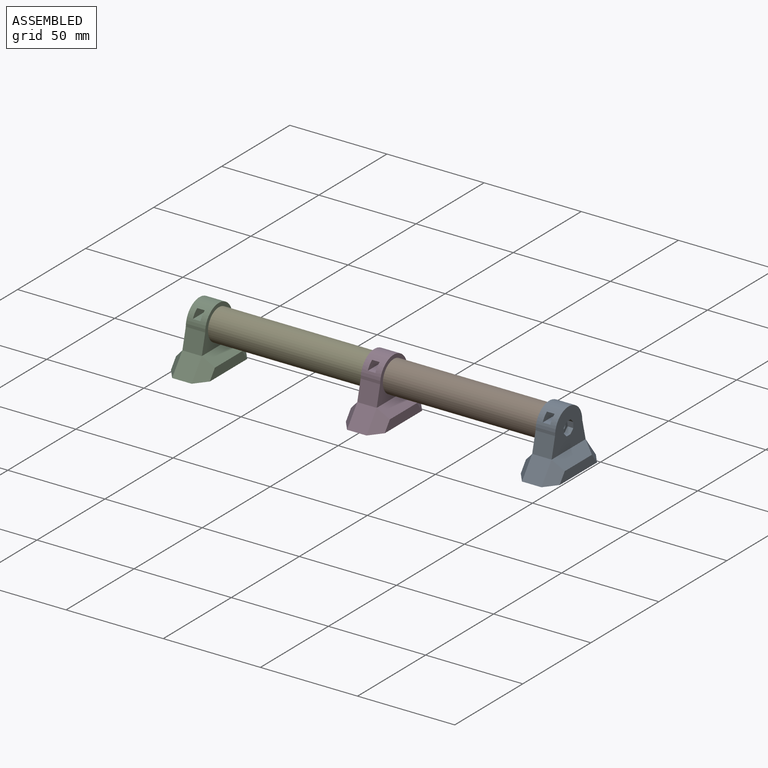
[diagram: assembled view]
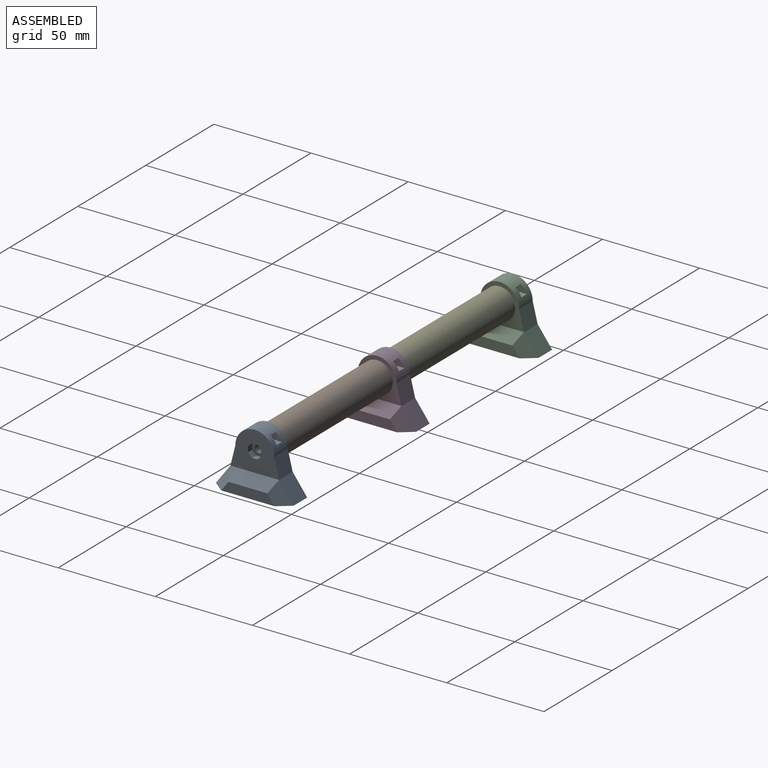
[diagram: assembled view, second angle]
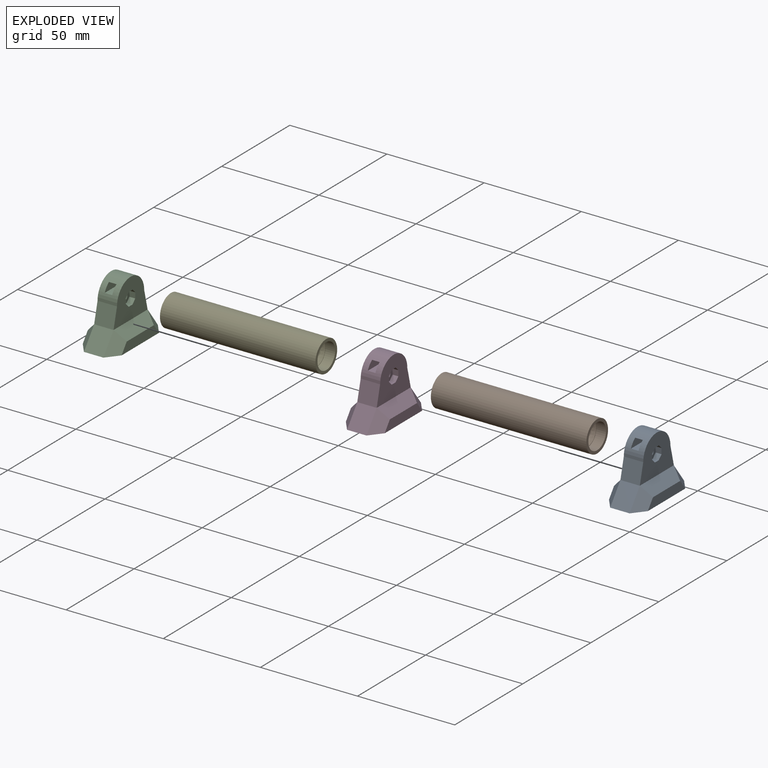
[diagram: exploded view]
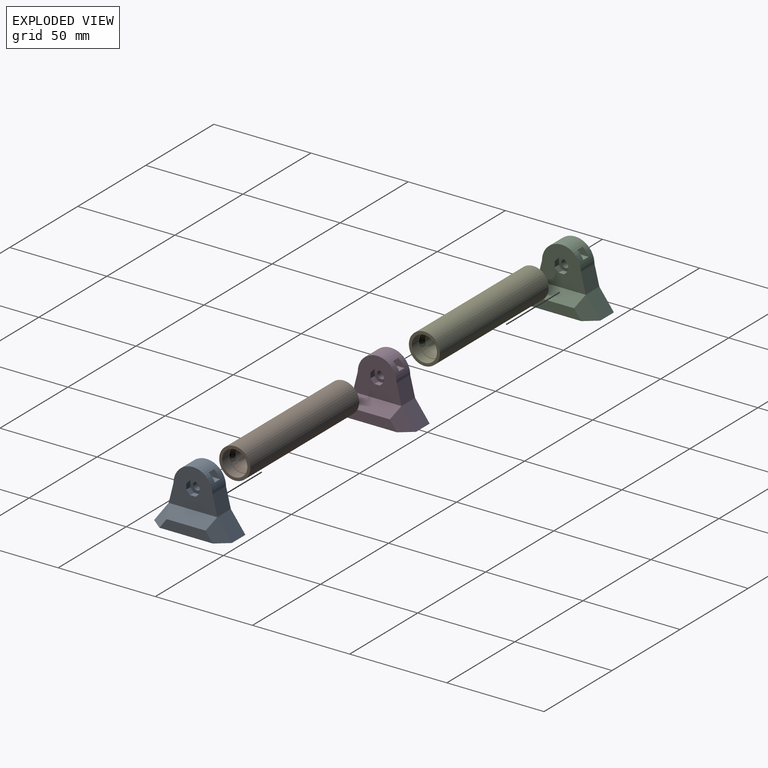
[diagram: exploded view, second angle]
ASSEMBLY  parts=5 mates=4
PART A: 47 faces, bbox 20x40x30 mm
  f0: cylinder r=10mm len=20mm, axis (-1,0,0), area 274.8mm2, adj f16,f17,f19,f20,f43,f44,f45,f46
  f1: plane 3x2.02mm, normal (0,0.71,-0.71), area 8.6mm2, adj f2,f8,f20,f28
  f2: plane 3x2.86mm, normal (0,0,-1), area 8.6mm2, adj f1,f3,f20,f28
  f3: plane 3x2.02mm, normal (0,-0.71,-0.71), area 8.6mm2, adj f2,f4,f20,f28
  f4: plane 3x2.86mm, normal (0,-1,0), area 8.6mm2, adj f3,f5,f20,f28
  f5: plane 3x2.02mm, normal (0,-0.71,0.71), area 8.6mm2, adj f4,f6,f20,f28
  f6: plane 3x2.86mm, normal (0,0,1), area 8.6mm2, adj f5,f7,f20,f28
  f7: plane 3x2.02mm, normal (0,0.71,0.71), area 8.6mm2, adj f6,f8,f20,f28
  f8: plane 3x2.86mm, normal (0,1,0), area 8.6mm2, adj f1,f7,f20,f28
  f9: plane 3x2.02mm, normal (0,0.71,-0.71), area 8.6mm2, adj f10,f18,f19,f27
  f10: plane 3x2.86mm, normal (0,0,-1), area 8.6mm2, adj f9,f11,f19,f27
  f11: plane 3x2.02mm, normal (0,-0.71,-0.71), area 8.6mm2, adj f10,f12,f19,f27
  f12: plane 3x2.86mm, normal (0,-1,0), area 8.6mm2, adj f11,f13,f19,f27
  f13: plane 3x2.02mm, normal (0,-0.71,0.71), area 8.6mm2, adj f12,f14,f19,f27
  f14: plane 3x2.86mm, normal (0,0,1), area 8.6mm2, adj f13,f15,f19,f27
  f15: plane 3x2.02mm, normal (0,0.71,0.71), area 8.6mm2, adj f14,f18,f19,f27
  f16: plane 10x10mm, normal (0,-0.97,0.24), area 103.1mm2, adj f0,f19,f20,f21
  f17: plane 10x10mm, normal (0,0.97,0.24), area 103.1mm2, adj f0,f19,f20,f23
  f18: plane 3x2.86mm, normal (0,1,0), area 8.6mm2, adj f9,f15,f19,f27
  f19: plane 25x20mm, normal (1,0,0), area 342.6mm2, adj f0,f9,f10,f11,f12,f13,f14,f15
  f20: plane 25x20mm, normal (-1,0,0), area 342.6mm2, adj f0,f1,f2,f3,f4,f5,f6,f7
  f21: plane 10x10mm, normal (0,-0.8,0.6), area 125mm2, adj f16,f22,f29,f32
  f22: plane 40x20mm, normal (0,0,-1), area 483mm2, adj f21,f23,f24,f25,f29,f31,f32,f34
  f23: plane 10x10mm, normal (0,0.8,0.6), area 125mm2, adj f17,f22,f31,f34
  f24: plane 27.5x5mm, normal (1,0,0), area 118.8mm2, adj f22,f32,f33,f34
  f25: plane 27.5x5mm, normal (-1,0,0), area 118.8mm2, adj f22,f29,f30,f31
  f26: cylinder r=2mm len=4mm, axis (-1,0,0), area 50.3mm2, adj f27,f28
  f27: plane 6.9x6.9mm, normal (1,0,0), area 26.9mm2, adj f9,f10,f11,f12,f13,f14,f15,f18
  f28: plane 6.9x6.9mm, normal (-1,0,0), area 26.9mm2, adj f1,f2,f3,f4,f5,f6,f7,f8
  f29: plane 10x10mm, normal (-0.71,-0.57,0.42), area 66.3mm2, adj f21,f22,f25,f30
  f30: plane 25x5mm, normal (-0.71,0,0.71), area 159.1mm2, adj f20,f25,f29,f31
  f31: plane 10x10mm, normal (-0.71,0.57,0.42), area 66.3mm2, adj f22,f23,f25,f30
  f32: plane 10x10mm, normal (0.71,-0.57,0.42), area 66.3mm2, adj f21,f22,f24,f33
  f33: plane 25x5mm, normal (0.71,0,0.71), area 159.1mm2, adj f19,f24,f32,f34
  f34: plane 10x10mm, normal (0.71,0.57,0.42), area 66.3mm2, adj f22,f23,f24,f33
  f35: cylinder r=4.5mm len=9mm, axis (0,0,-1), area 28.3mm2, adj f22,f36
  f36: plane 9x9mm, normal (0,0,-1), area 63.6mm2, adj f35
  f37: cylinder r=4.5mm len=9mm, axis (0,0,-1), area 28.3mm2, adj f22,f38
  f38: plane 9x9mm, normal (0,0,-1), area 63.6mm2, adj f37
  f39: cylinder r=4.5mm len=9mm, axis (0,0,-1), area 28.3mm2, adj f22,f40
  f40: plane 9x9mm, normal (0,0,-1), area 63.6mm2, adj f39
  f41: cylinder r=4.5mm len=9mm, axis (0,0,-1), area 28.3mm2, adj f22,f42
  f42: plane 9x9mm, normal (0,0,-1), area 63.6mm2, adj f41
  f43: plane 18.24x3.9mm, normal (-1,0,0), area 61.1mm2, adj f0,f44,f46
  f44: plane 12x3.9mm, normal (0,0,-1), area 46.8mm2, adj f0,f43,f45
  f45: plane 18.24x3.9mm, normal (1,0,0), area 61.1mm2, adj f0,f44,f46
  f46: plane 18.24x3.9mm, normal (0,0,1), area 71.1mm2, adj f0,f43,f45
PART B: 10 faces, bbox 80x16x16 mm
  f0: cylinder r=6.5mm len=13mm, axis (-1,0,0), area 204.2mm2, adj f1,f7
  f1: plane 16x16mm, normal (1,0,0), area 68.3mm2, adj f0,f2
  f2: cylinder r=8mm len=80mm, axis (-1,0,0), area 4021.2mm2, adj f1,f3
  f3: plane 16x16mm, normal (-1,0,0), area 68.3mm2, adj f2,f4
  f4: cylinder r=6.5mm len=13mm, axis (-1,0,0), area 204.2mm2, adj f3,f5
  f5: plane 13x13mm, normal (-1,0,0), area 8mm2, adj f4,f9
  f6: cylinder r=4.5mm len=66.4mm, axis (-1,0,0), area 1877.4mm2, adj f8,f9
  f7: plane 13x13mm, normal (1,0,0), area 8mm2, adj f0,f8
  f8: cone r=6.3mm half-angle=45deg, axis (1,0,0), area 86.4mm2, adj f6,f7
  f9: cone r=4.5mm half-angle=45deg, axis (-1,0,0), area 86.4mm2, adj f5,f6
PART C: same geometry as A
PART D: same geometry as A
PART E: same geometry as B
PLACE A t=(-7.17,-90.38,41.53)mm
PLACE B rot(axis=(0,1,0),180deg) t=(-52.17,-70.38,61.53)mm
PLACE C t=(-187.17,-90.38,41.53)mm
PLACE D t=(-97.17,-90.38,41.53)mm
PLACE E t=(-142.17,-70.38,61.53)mm
MATE fastened A.f0 <-> B.f0  axis (-1,0,0) through (-12.17,-70.38,61.53)mm
MATE fastened E.f0 <-> C.f0  axis (-1,0,0) through (-182.17,-70.38,61.53)mm
MATE fastened B.f0 <-> D.f0  axis (-1,0,0) through (-92.17,-70.38,61.53)mm
MATE fastened D.f0 <-> E.f0  axis (-1,0,0) through (-102.17,-70.38,61.53)mm
